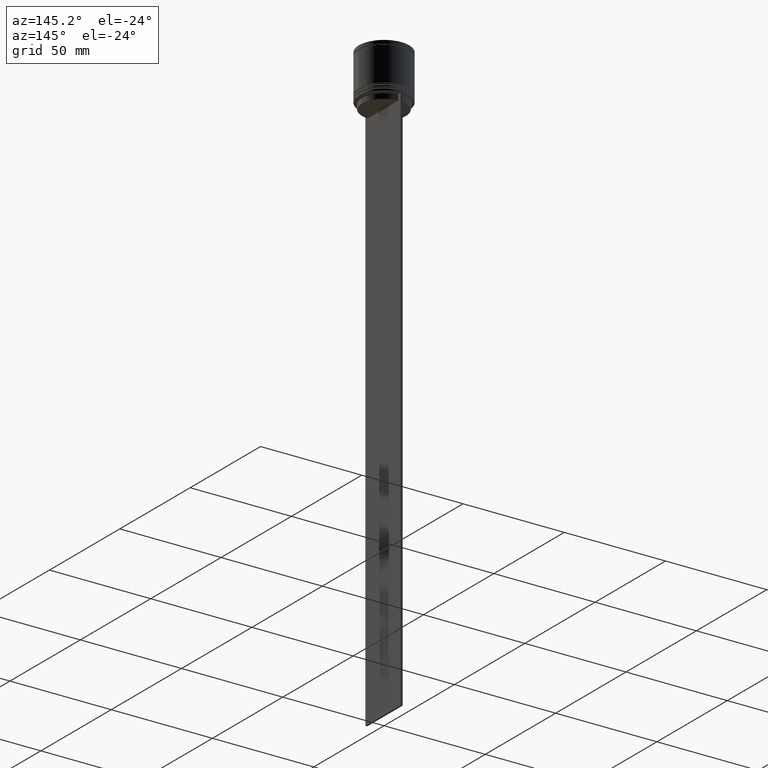
[diagram: clean part render]
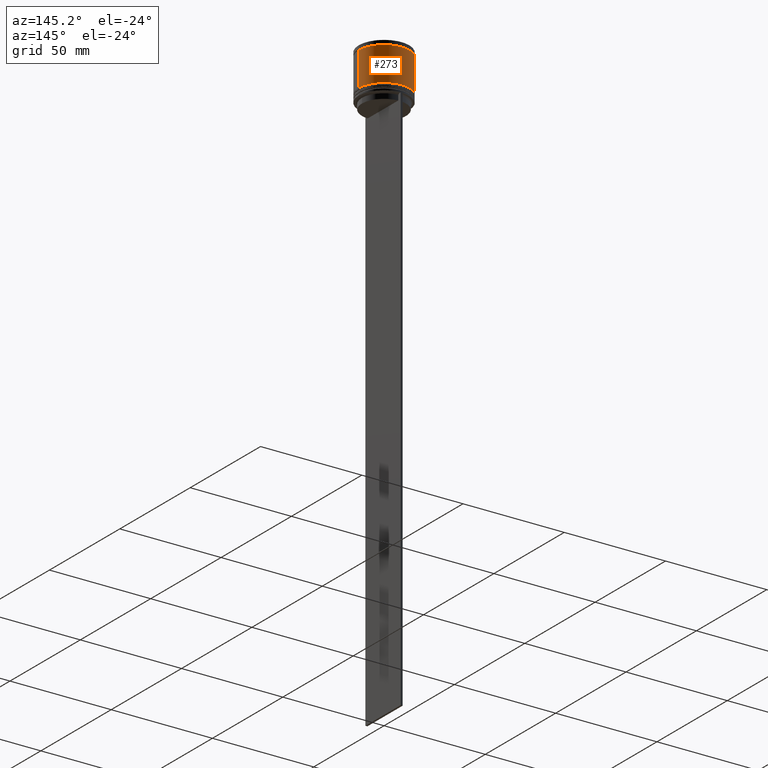
[diagram: same view with one face highlighted and labeled with its STEP entity id]
A machine part, auxiliary view. The second image highlights one B-rep face of the part: STEP entity #273.
In plain terms, the highlighted cylindrical surface (edge-blend (fillet) strip) has radius 12.5 mm, axis along (-0, -0, 1).
Its self-contained STEP definition (entity closure, byte-faithful):
#89 = DIRECTION ( 'NONE',  ( -0.000000000000000000, -0.000000000000000000, 1.000000000000000000 ) ) ;
#96 = CARTESIAN_POINT ( 'NONE',  ( 0.000000000000000000, 0.000000000000000000, -2.199999999999994404 ) ) ;
#100 = VERTEX_POINT ( 'NONE', #124 ) ;
#109 = DIRECTION ( 'NONE',  ( 1.000000000000000000, 0.000000000000000000, 0.000000000000000000 ) ) ;
#124 = CARTESIAN_POINT ( 'NONE',  ( -12.50000000000000355, 1.530808498934191916E-15, -19.00000000000000000 ) ) ;
#179 = ORIENTED_EDGE ( 'NONE', *, *, #1711, .F. ) ;
#214 = DIRECTION ( 'NONE',  ( -0.000000000000000000, -0.000000000000000000, 1.000000000000000000 ) ) ;
#273 = ADVANCED_FACE ( 'NONE', ( #984 ), #1207, .T. ) ;
#321 = CARTESIAN_POINT ( 'NONE',  ( 12.49999999999999645, 0.000000000000000000, -2.199999999999994404 ) ) ;
#323 = EDGE_CURVE ( 'NONE', #627, #100, #2004, .T. ) ;
#381 = EDGE_CURVE ( 'NONE', #627, #550, #584, .T. ) ;
#544 = CARTESIAN_POINT ( 'NONE',  ( 12.50000000000000000, 0.000000000000000000, 0.000000000000000000 ) ) ;
#550 = VERTEX_POINT ( 'NONE', #321 ) ;
#554 = DIRECTION ( 'NONE',  ( -0.000000000000000000, -0.000000000000000000, 1.000000000000000000 ) ) ;
#573 = ORIENTED_EDGE ( 'NONE', *, *, #1004, .T. ) ;
#584 = LINE ( 'NONE', #544, #1109 ) ;
#589 = VERTEX_POINT ( 'NONE', #1283 ) ;
#627 = VERTEX_POINT ( 'NONE', #1754 ) ;
#753 = ORIENTED_EDGE ( 'NONE', *, *, #381, .F. ) ;
#892 = DIRECTION ( 'NONE',  ( 1.000000000000000000, 0.000000000000000000, 0.000000000000000000 ) ) ;
#907 = DIRECTION ( 'NONE',  ( 1.000000000000000000, 0.000000000000000000, 0.000000000000000000 ) ) ;
#984 = FACE_OUTER_BOUND ( 'NONE', #2017, .T. ) ;
#1004 = EDGE_CURVE ( 'NONE', #100, #589, #1793, .T. ) ;
#1098 = DIRECTION ( 'NONE',  ( -0.000000000000000000, -0.000000000000000000, 1.000000000000000000 ) ) ;
#1109 = VECTOR ( 'NONE', #214, 1000.000000000000000 ) ;
#1179 = AXIS2_PLACEMENT_3D ( 'NONE', #1219, #554, #892 ) ;
#1207 = CYLINDRICAL_SURFACE ( 'NONE', #1540, 12.50000000000000000 ) ;
#1219 = CARTESIAN_POINT ( 'NONE',  ( 0.000000000000000000, 0.000000000000000000, -19.00000000000000000 ) ) ;
#1283 = CARTESIAN_POINT ( 'NONE',  ( -12.49999999999999645, 1.530808498934191324E-15, -2.199999999999994404 ) ) ;
#1311 = CARTESIAN_POINT ( 'NONE',  ( -12.50000000000000000, 1.530808498934191521E-15, 0.000000000000000000 ) ) ;
#1345 = VECTOR ( 'NONE', #1626, 1000.000000000000000 ) ;
#1540 = AXIS2_PLACEMENT_3D ( 'NONE', #1692, #89, #907 ) ;
#1588 = ORIENTED_EDGE ( 'NONE', *, *, #323, .T. ) ;
#1626 = DIRECTION ( 'NONE',  ( -0.000000000000000000, -0.000000000000000000, 1.000000000000000000 ) ) ;
#1692 = CARTESIAN_POINT ( 'NONE',  ( 0.000000000000000000, 0.000000000000000000, 0.000000000000000000 ) ) ;
#1711 = EDGE_CURVE ( 'NONE', #550, #589, #1979, .T. ) ;
#1754 = CARTESIAN_POINT ( 'NONE',  ( 12.50000000000000178, 0.000000000000000000, -19.00000000000000000 ) ) ;
#1793 = LINE ( 'NONE', #1311, #1345 ) ;
#1848 = AXIS2_PLACEMENT_3D ( 'NONE', #96, #1098, #109 ) ;
#1979 = CIRCLE ( 'NONE', #1848, 12.49999999999999645 ) ;
#2004 = CIRCLE ( 'NONE', #1179, 12.50000000000000178 ) ;
#2017 = EDGE_LOOP ( 'NONE', ( #1588, #573, #179, #753 ) ) ;